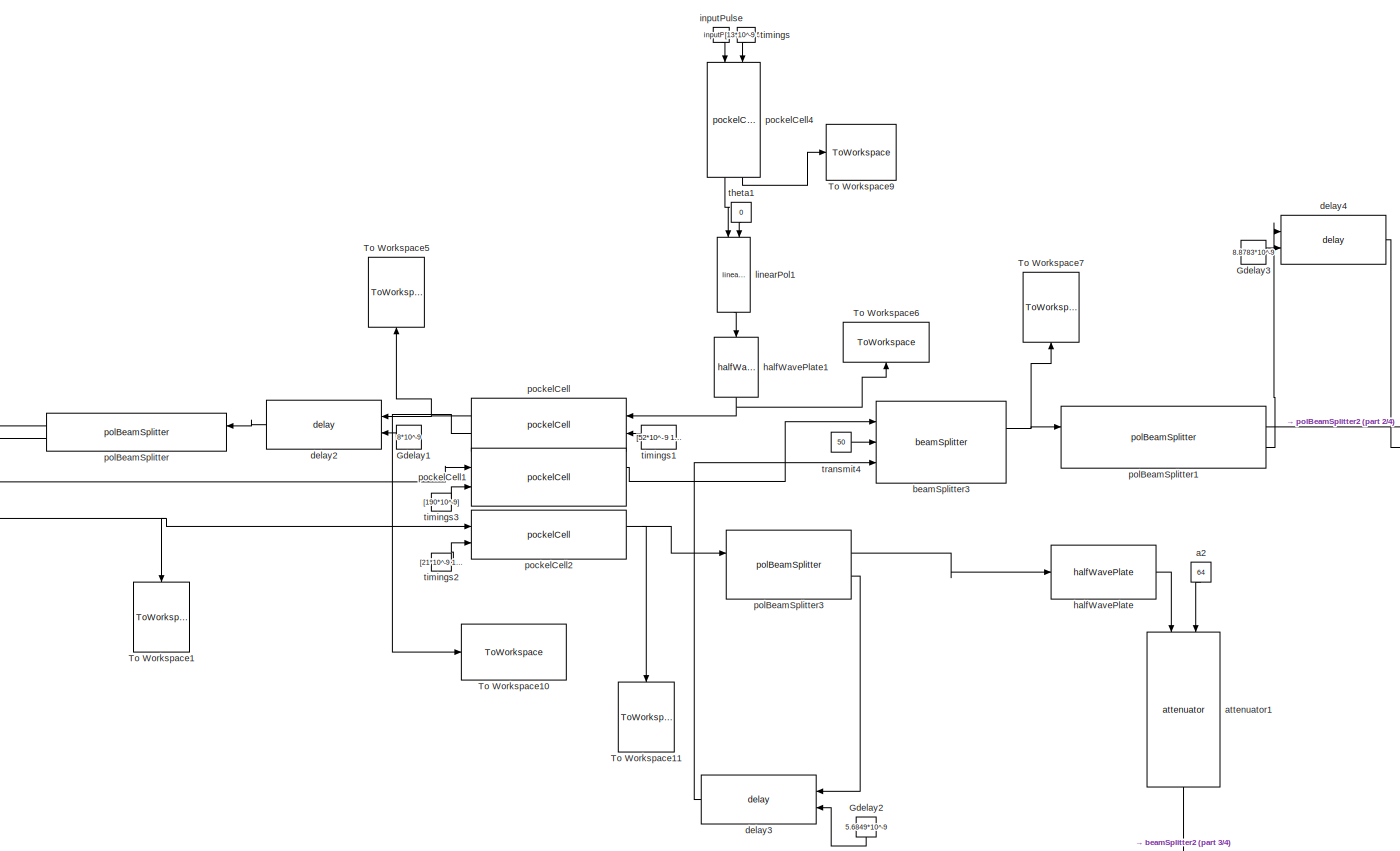
[diagram: root canvas - part 1/4, top left region]
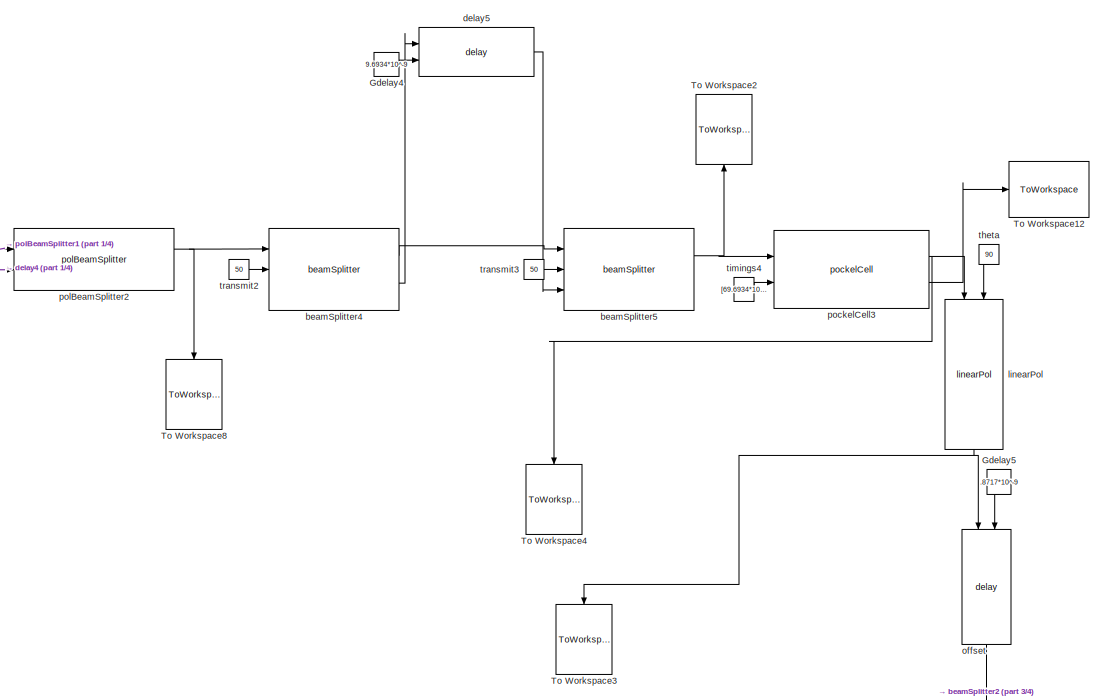
[diagram: root canvas - part 2/4, top right region]
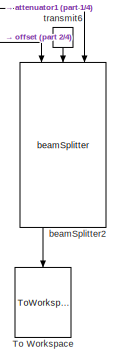
[diagram: root canvas - part 3/4, middle right region]
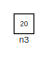
[diagram: root canvas - part 4/4, bottom right region]
MODEL slx_002d416d82eb
KIND model
BLOCK [Constant] Gdelay1
  Value = 8*10^-9
BLOCK [Constant] Gdelay2
  Value = 5.6849*10^-9
BLOCK [Constant] Gdelay3
  Value = 8.8783*10^-9
BLOCK [Constant] Gdelay4
  Value = 9.6934*10^-9
BLOCK [Constant] Gdelay5
  Value = .8717*10^-9
BLOCK [ToWorkspace] To Workspace
  MaxDataPoints = inf
  Ports = [1]
  SampleTime = -1
  VariableName = OutputPulse
BLOCK [ToWorkspace] To Workspace1
  MaxDataPoints = inf
  Ports = [1]
  SampleTime = -1
  VariableName = simout1
BLOCK [ToWorkspace] To Workspace10
  MaxDataPoints = inf
  Ports = [1]
  SampleTime = -1
  VariableName = PockelCellTimings
BLOCK [ToWorkspace] To Workspace11
  MaxDataPoints = inf
  Ports = [1]
  SampleTime = -1
  VariableName = vertPCOut
BLOCK [ToWorkspace] To Workspace12
  MaxDataPoints = inf
  Ports = [1]
  SampleTime = -1
  VariableName = FinalPCTiming
BLOCK [ToWorkspace] To Workspace2
  MaxDataPoints = inf
  Ports = [1]
  SampleTime = -1
  VariableName = BSDelayOut
BLOCK [ToWorkspace] To Workspace3
  MaxDataPoints = inf
  Ports = [1]
  SampleTime = -1
  VariableName = simout3
BLOCK [ToWorkspace] To Workspace4
  MaxDataPoints = inf
  Ports = [1]
  SampleTime = -1
  VariableName = simout4
BLOCK [ToWorkspace] To Workspace5
  MaxDataPoints = inf
  Ports = [1]
  SampleTime = -1
  VariableName = simout5
BLOCK [ToWorkspace] To Workspace6
  MaxDataPoints = inf
  Ports = [1]
  SampleTime = -1
  VariableName = InitialEOMOut
BLOCK [ToWorkspace] To Workspace7
  MaxDataPoints = inf
  Ports = [1]
  SampleTime = -1
  VariableName = CombinedPCOut
BLOCK [ToWorkspace] To Workspace8
  MaxDataPoints = inf
  Ports = [1]
  SampleTime = -1
  VariableName = PBSDelayOut
BLOCK [ToWorkspace] To Workspace9
  MaxDataPoints = inf
  Ports = [1]
  SampleTime = -1
  VariableName = EOMTimings
BLOCK [Constant] a2
  Value = 64
BLOCK [Reference] attenuator1  REF=opticalComponentLibrary/attenuator
  Ports = [2, 1]
  SourceBlock = opticalComponentLibrary/attenuator
  SourceType = SubSystem
BLOCK [Reference] beamSplitter2  REF=opticalComponentLibrary/beamSplitter
  Ports = [3, 2]
  SourceBlock = opticalComponentLibrary/beamSplitter
  SourceType = SubSystem
BLOCK [Reference] beamSplitter3  REF=opticalComponentLibrary/beamSplitter
  Ports = [3, 2]
  SourceBlock = opticalComponentLibrary/beamSplitter
  SourceType = SubSystem
BLOCK [Reference] beamSplitter4  REF=opticalComponentLibrary/beamSplitter
  Ports = [3, 2]
  SourceBlock = opticalComponentLibrary/beamSplitter
  SourceType = SubSystem
BLOCK [Reference] beamSplitter5  REF=opticalComponentLibrary/beamSplitter
  Ports = [3, 2]
  SourceBlock = opticalComponentLibrary/beamSplitter
  SourceType = SubSystem
BLOCK [Reference] delay2  REF=opticalComponentLibrary/delay
  Ports = [2, 1]
  SourceBlock = opticalComponentLibrary/delay
  SourceType = SubSystem
BLOCK [Reference] delay3  REF=opticalComponentLibrary/delay
  Ports = [2, 1]
  SourceBlock = opticalComponentLibrary/delay
  SourceType = SubSystem
BLOCK [Reference] delay4  REF=opticalComponentLibrary/delay
  Ports = [2, 1]
  SourceBlock = opticalComponentLibrary/delay
  SourceType = SubSystem
BLOCK [Reference] delay5  REF=opticalComponentLibrary/delay
  Ports = [2, 1]
  SourceBlock = opticalComponentLibrary/delay
  SourceType = SubSystem
BLOCK [Reference] halfWavePlate  REF=opticalComponentLibrary/halfWavePlate
  Ports = [1, 1]
  SourceBlock = opticalComponentLibrary/halfWavePlate
  SourceType = SubSystem
BLOCK [Reference] halfWavePlate1  REF=opticalComponentLibrary/halfWavePlate
  Ports = [1, 1]
  SourceBlock = opticalComponentLibrary/halfWavePlate
  SourceType = SubSystem
BLOCK [Constant] inputPulse
  Value = inputPulse
BLOCK [Reference] linearPol  REF=opticalComponentLibrary/linearPol
  Ports = [2, 1]
  SourceBlock = opticalComponentLibrary/linearPol
  SourceType = SubSystem
BLOCK [Reference] linearPol1  REF=opticalComponentLibrary/linearPol
  Ports = [2, 1]
  SourceBlock = opticalComponentLibrary/linearPol
  SourceType = SubSystem
BLOCK [Constant] n3
  Value = 20
BLOCK [Reference] offset  REF=opticalComponentLibrary/delay
  Ports = [2, 1]
  SourceBlock = opticalComponentLibrary/delay
  SourceType = SubSystem
BLOCK [Reference] pockelCell  REF=opticalComponentLibrary/pockelCell
  Ports = [2, 2]
  SourceBlock = opticalComponentLibrary/pockelCell
  SourceType = SubSystem
BLOCK [Reference] pockelCell1  REF=opticalComponentLibrary/pockelCell
  Ports = [2, 2]
  SourceBlock = opticalComponentLibrary/pockelCell
  SourceType = SubSystem
BLOCK [Reference] pockelCell2  REF=opticalComponentLibrary/pockelCell
  Ports = [2, 2]
  SourceBlock = opticalComponentLibrary/pockelCell
  SourceType = SubSystem
BLOCK [Reference] pockelCell3  REF=opticalComponentLibrary/pockelCell
  Ports = [2, 2]
  SourceBlock = opticalComponentLibrary/pockelCell
  SourceType = SubSystem
BLOCK [Reference] pockelCell4  REF=opticalComponentLibrary/pockelCell
  Ports = [2, 2]
  SourceBlock = opticalComponentLibrary/pockelCell
  SourceType = SubSystem
BLOCK [Reference] polBeamSplitter  REF=opticalComponentLibrary/polBeamSplitter
  Ports = [2, 2]
  SourceBlock = opticalComponentLibrary/polBeamSplitter
  SourceType = SubSystem
BLOCK [Reference] polBeamSplitter1  REF=opticalComponentLibrary/polBeamSplitter
  Ports = [2, 2]
  SourceBlock = opticalComponentLibrary/polBeamSplitter
  SourceType = SubSystem
BLOCK [Reference] polBeamSplitter2  REF=opticalComponentLibrary/polBeamSplitter
  Ports = [2, 2]
  SourceBlock = opticalComponentLibrary/polBeamSplitter
  SourceType = SubSystem
BLOCK [Reference] polBeamSplitter3  REF=opticalComponentLibrary/polBeamSplitter
  Ports = [2, 2]
  SourceBlock = opticalComponentLibrary/polBeamSplitter
  SourceType = SubSystem
BLOCK [Constant] theta
  Value = 90
BLOCK [Constant] theta1
  Value = 0
BLOCK [Constant] timings
  Value = [13*10^-9 52*10^-9 182*10^-9  390*10^-9 624*10^-9 819*10^-9 949*10^-9 1014*10^-9]
BLOCK [Constant] timings1
  Value = [52*10^-9 182*10^-9 390*10^-9 624*10^-9]
BLOCK [Constant] timings2
  Value = [21*10^-9 1022*10^-9]
BLOCK [Constant] timings3
  Value = [190*10^-9]
BLOCK [Constant] timings4
  Value = [69.6934*10^-9 198.8783*10^-9 407.6934*10^-9 632*10^-9 851.2566*10^-9 971.5632*10^-9]
BLOCK [Constant] transmit2
  Value = 50
BLOCK [Constant] transmit3
  Value = 50
BLOCK [Constant] transmit4
  Value = 50
BLOCK [Constant] transmit6
  Value = 50
LINE Gdelay1:1 -> delay2:2
LINE Gdelay2:1 -> delay3:2
LINE Gdelay3:1 -> delay4:2
LINE Gdelay4:1 -> delay5:2
LINE Gdelay5:1 -> offset:2
LINE a2:1 -> attenuator1:2
LINE attenuator1:1 -> beamSplitter2:3
LINE beamSplitter2:1 -> To Workspace:1
NET beamSplitter3:1 -> To Workspace7:1, polBeamSplitter1:1
LINE beamSplitter4:1 -> beamSplitter5:1
LINE beamSplitter4:2 -> delay5:1
NET beamSplitter5:1 -> To Workspace2:1, pockelCell3:1
LINE delay2:1 -> polBeamSplitter:1
LINE delay3:1 -> beamSplitter3:3
LINE delay4:1 -> polBeamSplitter2:2
LINE delay5:1 -> beamSplitter5:3
NET halfWavePlate1:1 -> To Workspace6:1, pockelCell:1
LINE halfWavePlate:1 -> attenuator1:1
LINE inputPulse:1 -> pockelCell4:1
LINE linearPol1:1 -> halfWavePlate1:1
NET linearPol:1 -> To Workspace3:1, offset:1
LINE offset:1 -> beamSplitter2:1
LINE pockelCell1:1 -> beamSplitter3:1
NET pockelCell2:1 -> To Workspace11:1, polBeamSplitter3:1
NET pockelCell3:1 -> To Workspace4:1, linearPol:1
LINE pockelCell3:2 -> To Workspace12:1
LINE pockelCell4:1 -> linearPol1:1
LINE pockelCell4:2 -> To Workspace9:1
NET pockelCell:1 -> To Workspace5:1, delay2:1
LINE pockelCell:2 -> To Workspace10:1
LINE polBeamSplitter1:1 -> polBeamSplitter2:1
LINE polBeamSplitter1:2 -> delay4:1
NET polBeamSplitter2:1 -> To Workspace8:1, beamSplitter4:1
LINE polBeamSplitter3:1 -> halfWavePlate:1
LINE polBeamSplitter3:2 -> delay3:1
LINE polBeamSplitter:1 -> pockelCell1:1
NET polBeamSplitter:2 -> To Workspace1:1, pockelCell2:1
LINE theta1:1 -> linearPol1:2
LINE theta:1 -> linearPol:2
LINE timings1:1 -> pockelCell:2
LINE timings2:1 -> pockelCell2:2
LINE timings3:1 -> pockelCell1:2
LINE timings4:1 -> pockelCell3:2
LINE timings:1 -> pockelCell4:2
LINE transmit2:1 -> beamSplitter4:2
LINE transmit3:1 -> beamSplitter5:2
LINE transmit4:1 -> beamSplitter3:2
LINE transmit6:1 -> beamSplitter2:2
note: NET lines group one-source signal fan-out (src -> all destinations, sorted); 1:1 wires keep LINE
